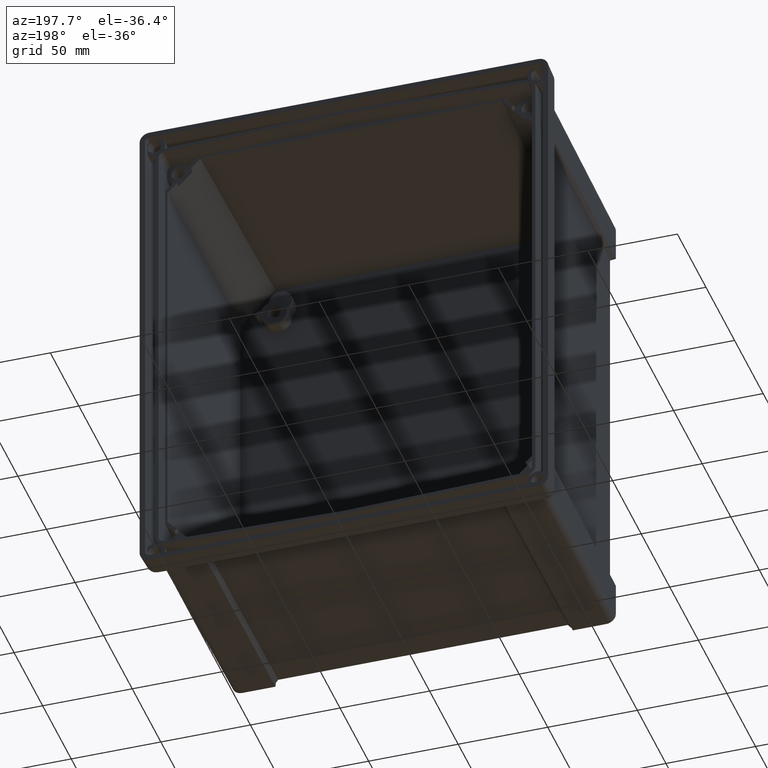
[diagram: clean part render]
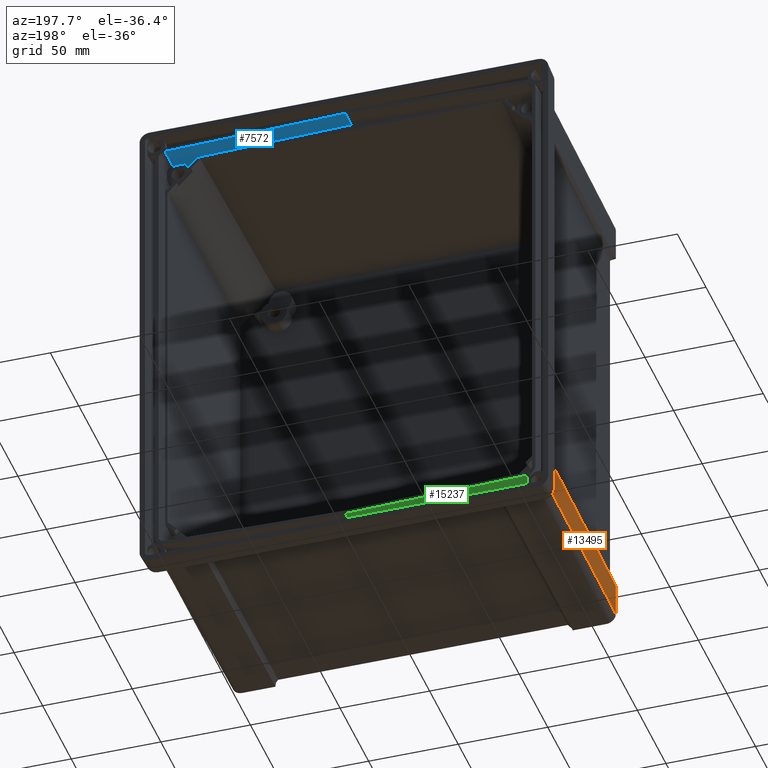
[diagram: same view with three faces highlighted in distinct colors, each labeled with its STEP entity id]
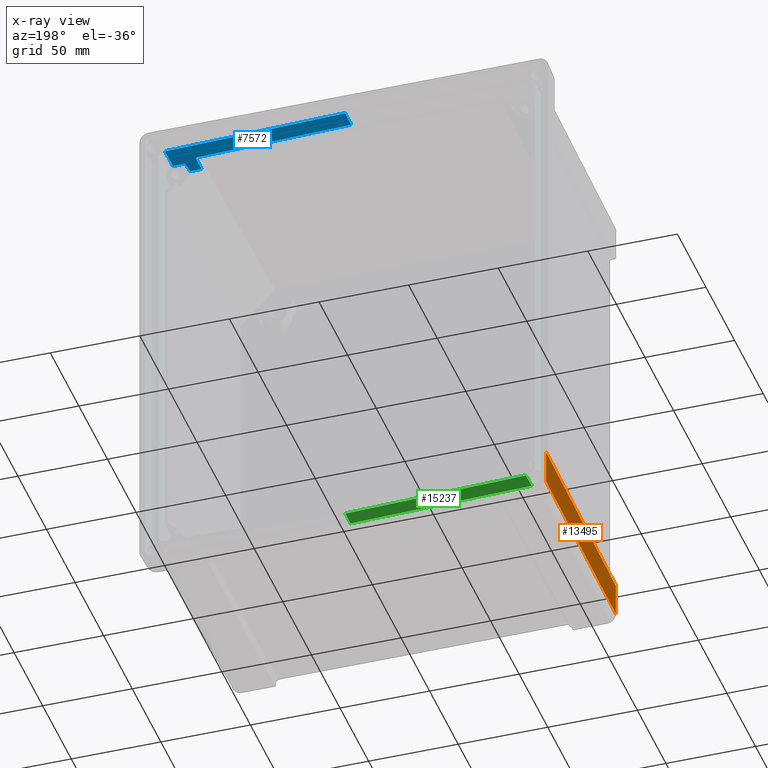
[diagram: x-ray of the same camera — body ghosted, the three highlighted faces saturated]
A machine part, auxiliary view with three faces highlighted in distinct colors.
The next image is the same camera in x-ray (body ghosted, the three faces saturated) — at least one of them is partly hidden behind the body in this view.
Their STEP definitions:

[orange] entity #13495 — the highlighted planar face has unit normal (1, 0.0087, 0).
#3342=CARTESIAN_POINT('',(-1.070071604521E2,-1.405E2,-1.265073698854E2));
#4115=DIRECTION('',(-2.990995525427E-4,6.357516904864E-5,-9.999999532488E-1));
#4116=VECTOR('',#4115,1.948757209928E1);
#4117=CARTESIAN_POINT('',(-1.080952451410E2,-1.515117746044E1,
-1.081137121266E2));
#4118=LINE('',#4117,#4116);
#4119=DIRECTION('',(-8.750112078506E-3,9.999612616821E-1,-9.542923024189E-4));
#4120=VECTOR('',#4119,1.233536010588E2);
#4121=CARTESIAN_POINT('',(-1.070158873064E2,-1.385000000083E2,
-1.079959967347E2));
#4122=LINE('',#4121,#4120);
#4123=DIRECTION('',(-4.363234744244E-3,9.999559024333E-1,8.315970861487E-3));
#4124=VECTOR('',#4123,2.000088190762E0);
#4125=CARTESIAN_POINT('',(-1.070071604521E2,-1.405E2,-1.080126294098E2));
#4126=LINE('',#4125,#4124);
#4127=DIRECTION('',(-6.223819328119E-13,-5.666733712159E-10,1.E0));
#4128=VECTOR('',#4127,1.849474046798E1);
#4129=CARTESIAN_POINT('',(-1.070071604521E2,-1.404999999895E2,
-1.265073698778E2));
#4130=LINE('',#4129,#4128);
#4131=DIRECTION('',(8.726203236471E-3,-9.999238504760E-1,8.726203429091E-3));
#4132=VECTOR('',#4131,1.253596075292E2);
#4133=CARTESIAN_POINT('',(-1.081010738651E2,-1.514993853475E1,
-1.276012833148E2));
#4134=LINE('',#4133,#4132);
#5773=CARTESIAN_POINT('',(-1.070158873064E2,-1.385000000083E2,
-1.079959967347E2));
#5774=VERTEX_POINT('',#5773);
#6018=CARTESIAN_POINT('',(-1.070071604521E2,-1.405E2,-1.080126294098E2));
#6020=VERTEX_POINT('',#6018);
#6030=VERTEX_POINT('',#3342);
#6476=CARTESIAN_POINT('',(-1.080952451410E2,-1.515117746044E1,
-1.081137121266E2));
#6477=VERTEX_POINT('',#6476);
#6478=CARTESIAN_POINT('',(-1.081010738651E2,-1.514993853475E1,
-1.276012833148E2));
#6479=VERTEX_POINT('',#6478);
#13481=CARTESIAN_POINT('',(-1.075541171590E2,-7.782496925750E1,
-1.177990986430E2));
#13482=DIRECTION('',(9.999619230642E-1,8.726535497233E-3,0.E0));
#13483=DIRECTION('',(8.726535497233E-3,-9.999619230642E-1,0.E0));
#13484=AXIS2_PLACEMENT_3D('',#13481,#13482,#13483);
#13485=PLANE('',#13484);
#13486=ORIENTED_EDGE('',*,*,#13438,.F.);
#13487=ORIENTED_EDGE('',*,*,#13474,.F.);
#13489=ORIENTED_EDGE('',*,*,#13488,.F.);
#13490=ORIENTED_EDGE('',*,*,#12599,.F.);
#13492=ORIENTED_EDGE('',*,*,#13491,.F.);
#13493=EDGE_LOOP('',(#13486,#13487,#13489,#13490,#13492));
#13494=FACE_OUTER_BOUND('',#13493,.F.);
#13495=ADVANCED_FACE('',(#13494),#13485,.F.);
#12599=EDGE_CURVE('',#6030,#6020,#4130,.T.);
#13438=EDGE_CURVE('',#6477,#6479,#4118,.T.);
#13474=EDGE_CURVE('',#5774,#6477,#4122,.T.);
#13488=EDGE_CURVE('',#6020,#5774,#4126,.T.);
#13491=EDGE_CURVE('',#6479,#6030,#4134,.T.);

[blue] entity #7572 — the highlighted planar face has unit normal (0.0262, -0.0349, 0.999).
#31=CARTESIAN_POINT('',(8.677526251867E1,-1.279291352155E1,1.286123023675E2));
#38=DIRECTION('',(9.996573146485E-1,-3.276200838899E-11,-2.617734268074E-2));
#39=VECTOR('',#38,8.680500932381E1);
#40=CARTESIAN_POINT('',(0.E0,-1.279291351871E1,1.308846268429E2));
#41=LINE('',#40,#39);
#543=DIRECTION('',(0.E0,-9.993904095744E-1,-3.491144870547E-2));
#544=VECTOR('',#543,1.029919180384E1);
#545=CARTESIAN_POINT('',(0.E0,-2.500000003583E0,1.312441865493E2));
#546=LINE('',#545,#544);
#573=CARTESIAN_POINT('',(9.380620497346E1,-1.579291337348E1,1.283234267013E2));
#574=CARTESIAN_POINT('',(9.367590242713E1,-1.698895225376E1,1.282850578781E2));
#575=CARTESIAN_POINT('',(9.342678662796E1,-1.939050672876E1,1.282076883274E2));
#576=CARTESIAN_POINT('',(9.319675525185E1,-2.179400715873E1,1.281297510561E2));
#577=CARTESIAN_POINT('',(9.308521140419E1,-2.300000008155E1,1.280905432970E2));
#579=DIRECTION('',(-3.483954866108E-2,-9.988151131950E-1,-3.397904504890E-2));
#580=VECTOR('',#579,1.030512062053E1);
#581=CARTESIAN_POINT('',(1.007403972892E2,-2.499999997468E0,1.286062063947E2));
#582=LINE('',#581,#580);
#583=DIRECTION('',(9.996573249723E-1,6.067973938010E-11,-2.617694843055E-2));
#584=VECTOR('',#583,1.007749303412E2);
#585=CARTESIAN_POINT('',(0.E0,-2.500000003583E0,1.312441865493E2));
#586=LINE('',#585,#584);
#600=DIRECTION('',(9.996594014473E-1,-1.321636053737E-8,-2.609753049563E-2));
#601=VECTOR('',#600,6.363389027165E0);
#602=CARTESIAN_POINT('',(8.672398973812E1,-2.299999999745E1,1.282566120362E2));
#603=LINE('',#602,#601);
#672=DIRECTION('',(9.996573249694E-1,-2.173623001481E-8,-2.617694854338E-2));
#673=VECTOR('',#672,6.575087802788E0);
#674=CARTESIAN_POINT('',(9.380620497346E1,-1.579291337348E1,1.283234267013E2));
#675=LINE('',#674,#673);
#727=DIRECTION('',(5.020142818490E-3,9.993807887499E-1,3.482581289280E-2));
#728=VECTOR('',#727,1.021341073473E1);
#729=CARTESIAN_POINT('',(8.672398973812E1,-2.299999999745E1,1.282566120362E2));
#730=LINE('',#729,#728);
#1898=DIRECTION('',(-7.768189848258E-4,-9.993908176971E-1,-3.489111713548E-2));
#1899=VECTOR('',#1898,3.001831962753E0);
#1900=CARTESIAN_POINT('',(1.003813715379E2,-1.279291021656E1,1.282560482369E2));
#1901=LINE('',#1900,#1899);
#5890=VERTEX_POINT('',#31);
#5891=CARTESIAN_POINT('',(0.E0,-1.279291351871E1,1.308846268429E2));
#5892=VERTEX_POINT('',#5891);
#6163=CARTESIAN_POINT('',(1.003790396408E2,-1.579291351800E1,1.281513109645E2));
#6164=VERTEX_POINT('',#6163);
#6165=CARTESIAN_POINT('',(9.380620497346E1,-1.579291337348E1,1.283234267013E2));
#6166=VERTEX_POINT('',#6165);
#6299=CARTESIAN_POINT('',(8.672398973812E1,-2.299999999745E1,1.282566120362E2));
#6300=CARTESIAN_POINT('',(9.308521140419E1,-2.300000008155E1,1.280905432970E2));
#6301=VERTEX_POINT('',#6299);
#6302=VERTEX_POINT('',#6300);
#6303=CARTESIAN_POINT('',(1.003813715379E2,-1.279291021656E1,1.282560482369E2));
#6304=VERTEX_POINT('',#6303);
#6305=CARTESIAN_POINT('',(1.007403972892E2,-2.499999997468E0,1.286062063947E2));
#6306=VERTEX_POINT('',#6305);
#6307=CARTESIAN_POINT('',(0.E0,-2.500000003583E0,1.312441865493E2));
#6308=VERTEX_POINT('',#6307);
#7550=CARTESIAN_POINT('',(5.037019864096E1,-1.274650299219E1,1.295672580195E2));
#7551=DIRECTION('',(2.616100201806E-2,-3.489949668676E-2,9.990483607436E-1));
#7552=DIRECTION('',(0.E0,9.993904096901E-1,3.491144539370E-2));
#7553=AXIS2_PLACEMENT_3D('',#7550,#7551,#7552);
#7554=PLANE('',#7553);
#7556=ORIENTED_EDGE('',*,*,#7555,.T.);
#7558=ORIENTED_EDGE('',*,*,#7557,.F.);
#7560=ORIENTED_EDGE('',*,*,#7559,.T.);
#7562=ORIENTED_EDGE('',*,*,#7561,.F.);
#7564=ORIENTED_EDGE('',*,*,#7563,.F.);
#7565=ORIENTED_EDGE('',*,*,#6862,.F.);
#7566=ORIENTED_EDGE('',*,*,#7515,.T.);
#7567=ORIENTED_EDGE('',*,*,#6685,.T.);
#7569=ORIENTED_EDGE('',*,*,#7568,.F.);
#7570=EDGE_LOOP('',(#7556,#7558,#7560,#7562,#7564,#7565,#7566,#7567,#7569));
#7571=FACE_OUTER_BOUND('',#7570,.F.);
#7572=ADVANCED_FACE('',(#7571),#7554,.F.);
#578=B_SPLINE_CURVE_WITH_KNOTS('',3,(#573,#574,#575,#576,#577),.UNSPECIFIED.,
.F.,.F.,(4,1,4),(0.E0,4.983605023084E-1,1.E0),.UNSPECIFIED.);
#6685=EDGE_CURVE('',#5892,#5890,#41,.T.);
#6862=EDGE_CURVE('',#6308,#6306,#586,.T.);
#7515=EDGE_CURVE('',#6308,#5892,#546,.T.);
#7555=EDGE_CURVE('',#6301,#6302,#603,.T.);
#7557=EDGE_CURVE('',#6166,#6302,#578,.T.);
#7559=EDGE_CURVE('',#6166,#6164,#675,.T.);
#7561=EDGE_CURVE('',#6304,#6164,#1901,.T.);
#7563=EDGE_CURVE('',#6306,#6304,#582,.T.);
#7568=EDGE_CURVE('',#6301,#5890,#730,.T.);

[green] entity #15237 — the highlighted planar face has unit normal (0.0262, -0.0349, 0.999).
#5059=DIRECTION('',(-9.996471083360E-1,-5.523015836494E-3,2.598374668104E-2));
#5060=VECTOR('',#5059,9.929762219294E1);
#5061=CARTESIAN_POINT('',(2.424707427432E-8,-1.139649110991E1,
-1.335207181718E2));
#5062=LINE('',#5061,#5060);
#5241=DIRECTION('',(2.723803751602E-9,-9.993904096062E-1,-3.491144779595E-2));
#5242=VECTOR('',#5241,8.901917632113E0);
#5243=CARTESIAN_POINT('',(0.E0,-2.500000001275E0,-1.332099393391E2));
#5244=LINE('',#5243,#5242);
#5245=DIRECTION('',(9.996573249814E-1,7.973144582753E-13,-2.617694808592E-2));
#5246=VECTOR('',#5245,1.007935563406E2);
#5247=CARTESIAN_POINT('',(-1.007590169068E2,-2.500000001355E0,
-1.305714716473E2));
#5248=LINE('',#5247,#5246);
#5249=DIRECTION('',(3.487934252031E-2,9.988137614788E-1,3.397795382151E-2));
#5250=VECTOR('',#5249,9.426022756493E0);
#5251=CARTESIAN_POINT('',(-1.010877903831E2,-1.191484124655E1,
-1.308917486133E2));
#5252=LINE('',#5251,#5250);
#5253=CARTESIAN_POINT('',(-9.926258086126E1,-1.194491344930E1,
-1.309405939103E2));
#5254=CARTESIAN_POINT('',(-9.987121601566E1,-1.194827613766E1,
-1.309247737058E2));
#5255=CARTESIAN_POINT('',(-1.004796177273E2,-1.193816806697E1,
-1.309084890437E2));
#5256=CARTESIAN_POINT('',(-1.010877903633E2,-1.191484124814E1,
-1.308917486130E2));
#5258=CARTESIAN_POINT('',(-1.010877903831E2,-1.191484124655E1,
-1.308917486133E2));
#6061=CARTESIAN_POINT('',(-9.926258086556E1,-1.194491344981E1,
-1.309405939107E2));
#6062=VERTEX_POINT('',#6061);
#6063=CARTESIAN_POINT('',(2.424707427432E-8,-1.139649110991E1,
-1.335207181718E2));
#6064=VERTEX_POINT('',#6063);
#6073=VERTEX_POINT('',#5258);
#6074=CARTESIAN_POINT('',(-1.007590169068E2,-2.500000001355E0,
-1.305714716473E2));
#6075=VERTEX_POINT('',#6074);
#6548=CARTESIAN_POINT('',(0.E0,-2.500000001275E0,-1.332099393391E2));
#6549=VERTEX_POINT('',#6548);
#15223=CARTESIAN_POINT('',(-5.054389518166E1,-7.177549736724E0,
-1.320498005152E2));
#15224=DIRECTION('',(2.616100201753E-2,-3.489949666754E-2,9.990483607443E-1));
#15225=DIRECTION('',(0.E0,9.993904096908E-1,3.491144537447E-2));
#15226=AXIS2_PLACEMENT_3D('',#15223,#15224,#15225);
#15227=PLANE('',#15226);
#15229=ORIENTED_EDGE('',*,*,#15228,.F.);
#15230=ORIENTED_EDGE('',*,*,#15040,.F.);
#15231=ORIENTED_EDGE('',*,*,#15214,.F.);
#15232=ORIENTED_EDGE('',*,*,#6839,.F.);
#15234=ORIENTED_EDGE('',*,*,#15233,.F.);
#15235=EDGE_LOOP('',(#15229,#15230,#15231,#15232,#15234));
#15236=FACE_OUTER_BOUND('',#15235,.F.);
#15237=ADVANCED_FACE('',(#15236),#15227,.F.);
#5257=B_SPLINE_CURVE_WITH_KNOTS('',3,(#5253,#5254,#5255,#5256),.UNSPECIFIED.,
.F.,.F.,(4,4),(0.E0,1.E0),.UNSPECIFIED.);
#6839=EDGE_CURVE('',#6075,#6549,#5248,.T.);
#15040=EDGE_CURVE('',#6064,#6062,#5062,.T.);
#15214=EDGE_CURVE('',#6549,#6064,#5244,.T.);
#15228=EDGE_CURVE('',#6062,#6073,#5257,.T.);
#15233=EDGE_CURVE('',#6073,#6075,#5252,.T.);